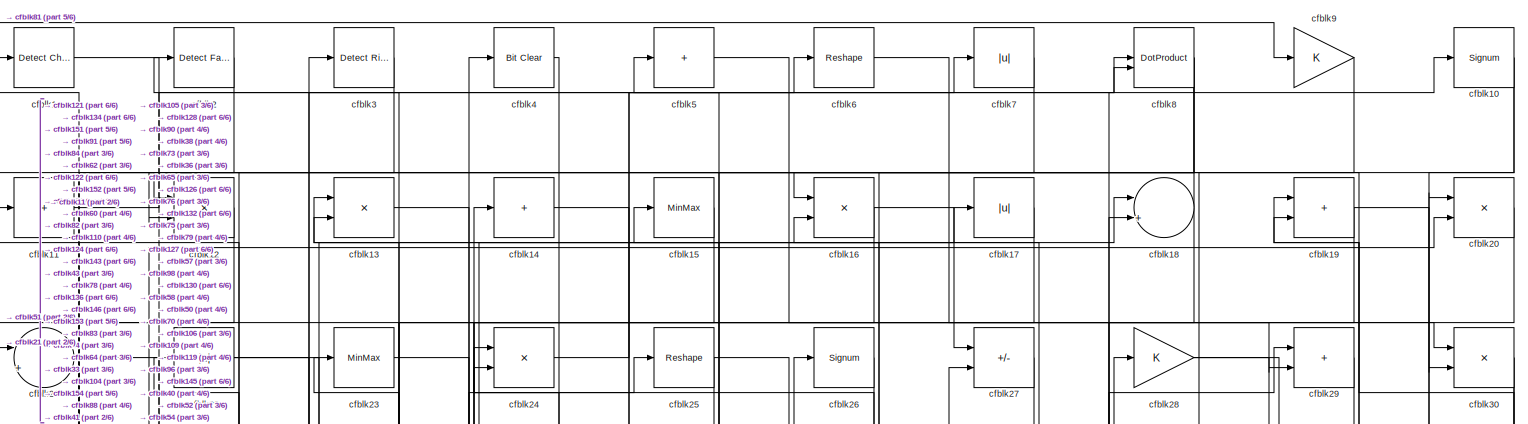
[diagram: root canvas - part 1/6, full width, top band]
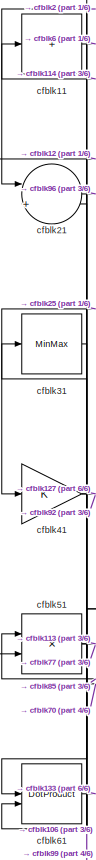
[diagram: root canvas - part 2/6, top left region]
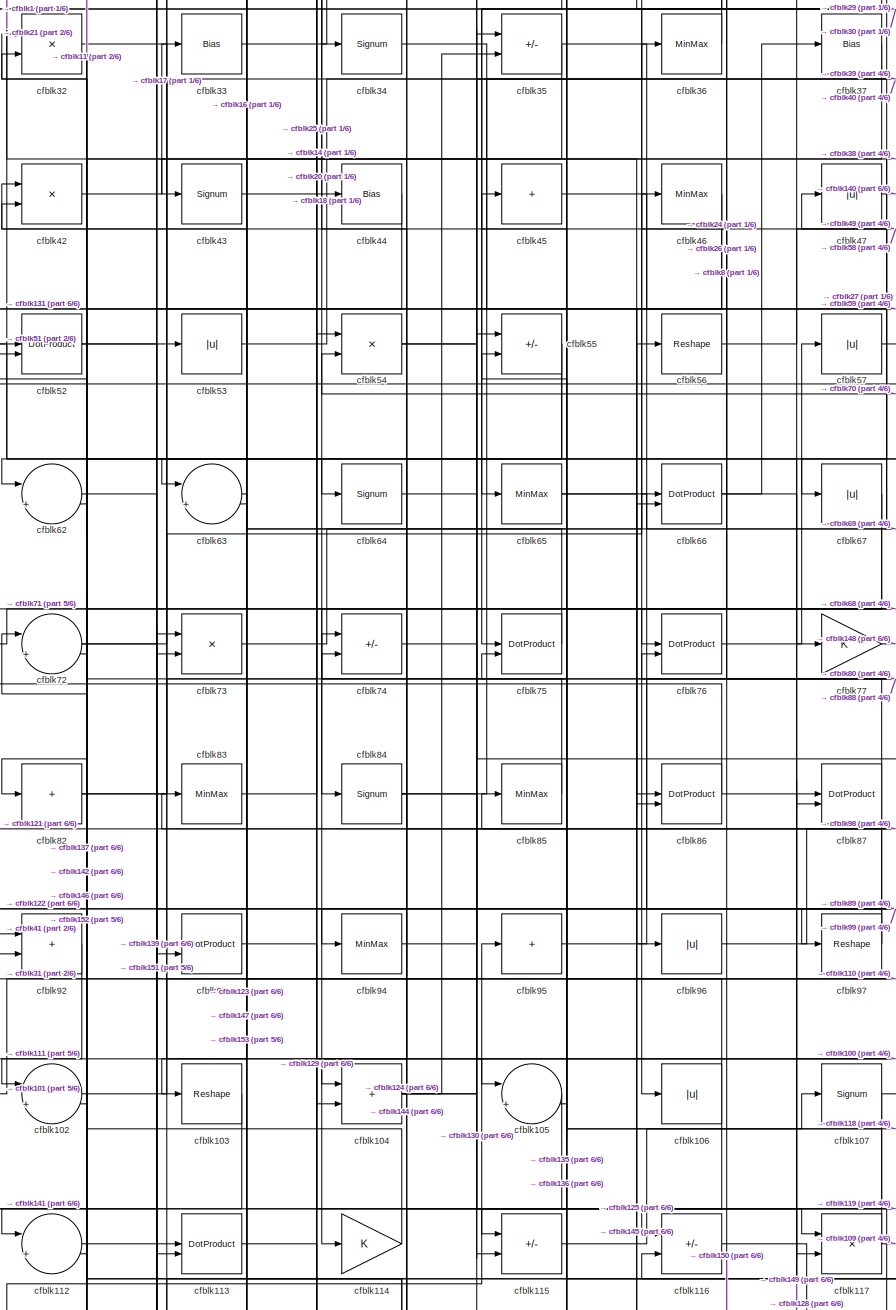
[diagram: root canvas - part 3/6, central region]
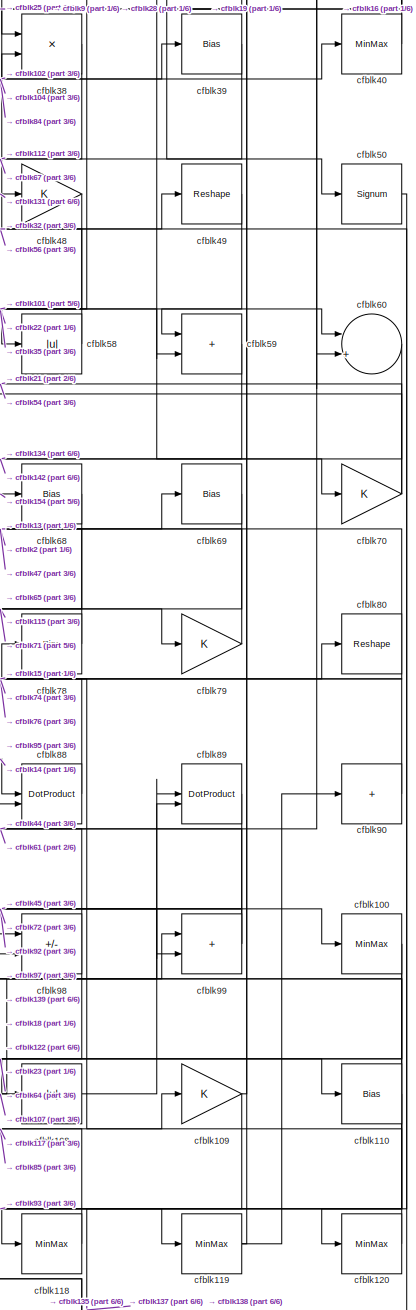
[diagram: root canvas - part 4/6, middle right region]
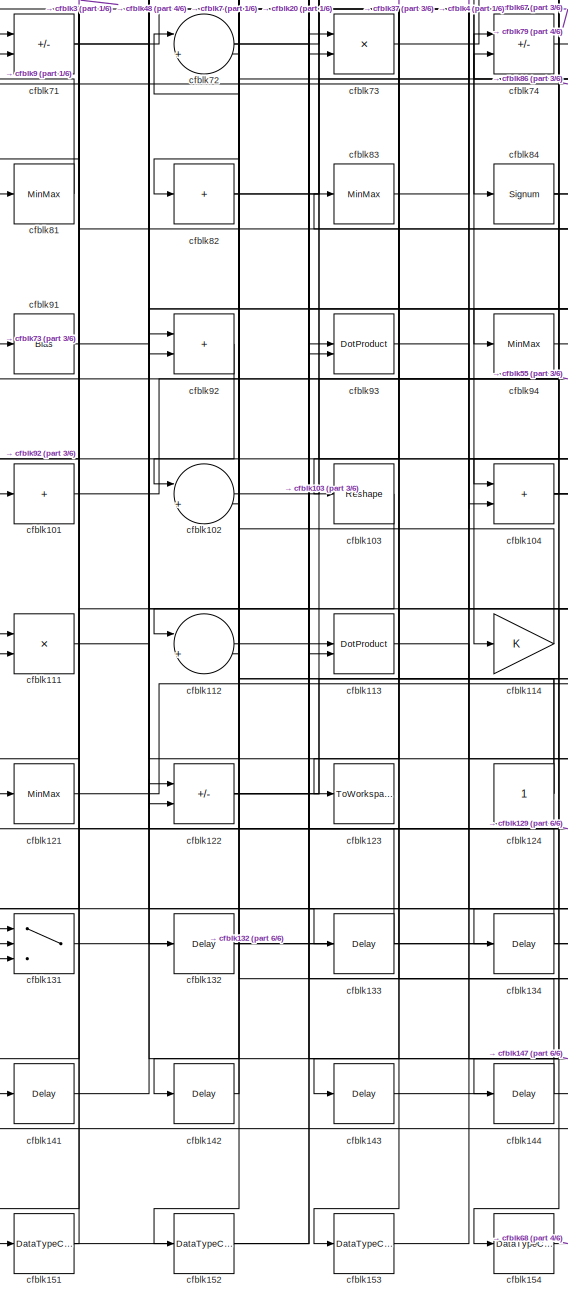
[diagram: root canvas - part 5/6, bottom left region]
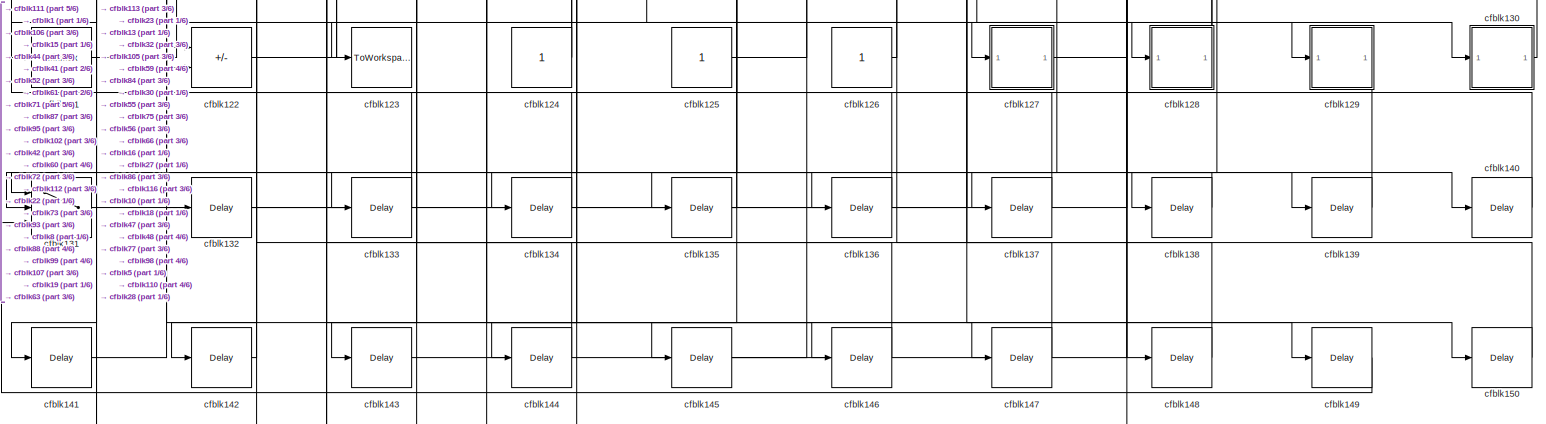
[diagram: root canvas - part 6/6, full width, bottom band]
MODEL slx_20498c852771
KIND model
CONFIG AbsTol = auto
CONFIG EnableMultiTasking = off
CONFIG FixedStep = auto
CONFIG MaxStep = auto
CONFIG MinStep = auto
CONFIG RelTol = 1e-3
CONFIG SampleTimeConstraint = Unconstrained
CONFIG SolverName = VariableStepAuto
CONFIG StartTime = 0.0
CONFIG StopTime = 10.0
BLOCK [Reference] cfblk1  REF=simulink/Logic and Bit
Operations/Detect
Change
  LibrarySourceBlock = hdlsllib/Logic and Bit\nOperations/Detect\nChange
  SourceBlock = simulink/Logic and Bit\nOperations/Detect\nChange
  SourceType = Detect Change
BLOCK [Signum] cfblk10
BLOCK [MinMax] cfblk100
BLOCK [Sum] cfblk101
  IconShape = rectangular
  Inputs = +
BLOCK [Sum] cfblk102
  Inputs = |++
BLOCK [Reshape] cfblk103
BLOCK [Sum] cfblk104
  IconShape = rectangular
BLOCK [Sum] cfblk105
  Inputs = |++
BLOCK [Abs] cfblk106
  SaturateOnIntegerOverflow = off
BLOCK [Signum] cfblk107
BLOCK [Abs] cfblk108
  SaturateOnIntegerOverflow = off
BLOCK [Gain] cfblk109
BLOCK [Sum] cfblk11
  IconShape = rectangular
  Inputs = +
BLOCK [Bias] cfblk110
  Bias = 0.0
  SaturateOnIntegerOverflow = off
BLOCK [Product] cfblk111
  Inputs = */
  RndMeth = Zero
  SaturateOnIntegerOverflow = on
BLOCK [Sum] cfblk112
  Inputs = |++
BLOCK [DotProduct] cfblk113
  OutDataTypeStr = Inherit: Inherit via internal rule
BLOCK [Gain] cfblk114
BLOCK [Sum] cfblk115
  IconShape = rectangular
  Inputs = +-
BLOCK [Sum] cfblk116
  IconShape = rectangular
  Inputs = +-
BLOCK [Product] cfblk117
  Inputs = */
  RndMeth = Zero
  SaturateOnIntegerOverflow = on
BLOCK [MinMax] cfblk118
BLOCK [MinMax] cfblk119
BLOCK [Product] cfblk12
  Inputs = */
  RndMeth = Zero
  SaturateOnIntegerOverflow = on
BLOCK [MinMax] cfblk120
BLOCK [MinMax] cfblk121
BLOCK [Sum] cfblk122
  IconShape = rectangular
  Inputs = +-
BLOCK [ToWorkspace] cfblk123
  MaxDataPoints = inf
  SampleTime = -1
  SaveFormat = Timeseries
  VariableName = simout
BLOCK [Constant] cfblk124
  SampleTime = -1
BLOCK [Constant] cfblk125
  SampleTime = -1
BLOCK [Constant] cfblk126
  SampleTime = -1
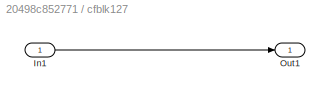
BLOCK [SubSystem] cfblk127
  LibrarySourceBlock = hdlsllib/Ports &\nSubsystems/Subsystem
BLOCK [Inport] cfblk127/In1
BLOCK [Outport] cfblk127/Out1
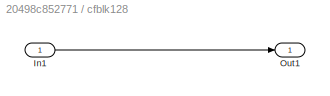
BLOCK [SubSystem] cfblk128
  LibrarySourceBlock = hdlsllib/Ports &\nSubsystems/Subsystem
BLOCK [Inport] cfblk128/In1
BLOCK [Outport] cfblk128/Out1
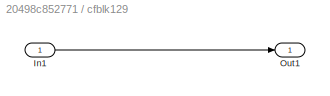
BLOCK [SubSystem] cfblk129
  LibrarySourceBlock = hdlsllib/Ports &\nSubsystems/Subsystem
BLOCK [Inport] cfblk129/In1
BLOCK [Outport] cfblk129/Out1
BLOCK [Product] cfblk13
  Inputs = */
  RndMeth = Zero
  SaturateOnIntegerOverflow = on
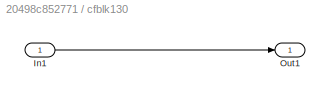
BLOCK [SubSystem] cfblk130
  LibrarySourceBlock = hdlsllib/Ports &\nSubsystems/Subsystem
BLOCK [Inport] cfblk130/In1
BLOCK [Outport] cfblk130/Out1
BLOCK [Switch] cfblk131
  InputSameDT = off
  SaturateOnIntegerOverflow = off
BLOCK [Delay] cfblk132
  InputPortMap = u0
  SampleTime = 1
BLOCK [Delay] cfblk133
  InputPortMap = u0
  SampleTime = 1
BLOCK [Delay] cfblk134
  InputPortMap = u0
  SampleTime = 1
BLOCK [Delay] cfblk135
  InputPortMap = u0
  SampleTime = 1
BLOCK [Delay] cfblk136
  InputPortMap = u0
  SampleTime = 1
BLOCK [Delay] cfblk137
  InputPortMap = u0
  SampleTime = 1
BLOCK [Delay] cfblk138
  InputPortMap = u0
  SampleTime = 1
BLOCK [Delay] cfblk139
  InputPortMap = u0
  SampleTime = 1
BLOCK [Sum] cfblk14
  IconShape = rectangular
  Inputs = +
BLOCK [Delay] cfblk140
  InputPortMap = u0
  SampleTime = 1
BLOCK [Delay] cfblk141
  InputPortMap = u0
  SampleTime = 1
BLOCK [Delay] cfblk142
  InputPortMap = u0
  SampleTime = 1
BLOCK [Delay] cfblk143
  InputPortMap = u0
  SampleTime = 1
BLOCK [Delay] cfblk144
  InputPortMap = u0
  SampleTime = 1
BLOCK [Delay] cfblk145
  InputPortMap = u0
  SampleTime = 1
BLOCK [Delay] cfblk146
  InputPortMap = u0
  SampleTime = 1
BLOCK [Delay] cfblk147
  InputPortMap = u0
  SampleTime = 1
BLOCK [Delay] cfblk148
  InputPortMap = u0
  SampleTime = 1
BLOCK [Delay] cfblk149
  InputPortMap = u0
  SampleTime = 1
BLOCK [MinMax] cfblk15
BLOCK [Delay] cfblk150
  InputPortMap = u0
  SampleTime = 1
BLOCK [DataTypeConversion] cfblk151
  RndMeth = Floor
  SaturateOnIntegerOverflow = off
BLOCK [DataTypeConversion] cfblk152
  OutDataTypeStr = uint8
  RndMeth = Floor
  SaturateOnIntegerOverflow = off
BLOCK [DataTypeConversion] cfblk153
  OutDataTypeStr = boolean
  RndMeth = Floor
  SaturateOnIntegerOverflow = off
BLOCK [DataTypeConversion] cfblk154
  OutDataTypeStr = uint8
  RndMeth = Floor
  SaturateOnIntegerOverflow = off
BLOCK [Product] cfblk16
  Inputs = */
  RndMeth = Zero
  SaturateOnIntegerOverflow = on
BLOCK [Abs] cfblk17
  SaturateOnIntegerOverflow = off
BLOCK [Sum] cfblk18
  Inputs = |++
BLOCK [Sum] cfblk19
  IconShape = rectangular
BLOCK [Reference] cfblk2  REF=hdlsllib/Logic and Bit
Operations/Detect Fall
Nonpositive
  SourceBlock = hdlsllib/Logic and Bit\nOperations/Detect Fall\nNonpositive
  SourceType = Detect Fall Nonpositive
BLOCK [Product] cfblk20
  Inputs = */
  RndMeth = Zero
  SaturateOnIntegerOverflow = on
BLOCK [Sum] cfblk21
  Inputs = |++
BLOCK [Abs] cfblk22
  SaturateOnIntegerOverflow = off
BLOCK [MinMax] cfblk23
BLOCK [Product] cfblk24
  Inputs = */
  RndMeth = Zero
  SaturateOnIntegerOverflow = on
BLOCK [Reshape] cfblk25
BLOCK [Signum] cfblk26
BLOCK [Sum] cfblk27
  IconShape = rectangular
  Inputs = +-
BLOCK [Gain] cfblk28
BLOCK [Sum] cfblk29
  IconShape = rectangular
BLOCK [Reference] cfblk3  REF=hdlsllib/Logic and Bit
Operations/Detect Rise
Positive
  SourceBlock = hdlsllib/Logic and Bit\nOperations/Detect Rise\nPositive
  SourceType = Detect Rise Positive
BLOCK [Product] cfblk30
  Inputs = */
  RndMeth = Zero
  SaturateOnIntegerOverflow = on
BLOCK [MinMax] cfblk31
BLOCK [Product] cfblk32
  Inputs = */
  RndMeth = Zero
  SaturateOnIntegerOverflow = on
BLOCK [Bias] cfblk33
  Bias = 0.0
  SaturateOnIntegerOverflow = off
BLOCK [Signum] cfblk34
BLOCK [Sum] cfblk35
  IconShape = rectangular
  Inputs = +-
BLOCK [MinMax] cfblk36
BLOCK [Bias] cfblk37
  Bias = 0.0
  SaturateOnIntegerOverflow = off
BLOCK [Product] cfblk38
  Inputs = */
  RndMeth = Zero
  SaturateOnIntegerOverflow = on
BLOCK [Bias] cfblk39
  Bias = 0.0
  SaturateOnIntegerOverflow = off
BLOCK [Reference] cfblk4  REF=simulink/Logic and Bit
Operations/Bit Clear
  LibrarySourceBlock = hdlsllib/Logic and Bit\nOperations/Bit Clear
  SourceBlock = simulink/Logic and Bit\nOperations/Bit Clear
  SourceType = Bit Clear
BLOCK [MinMax] cfblk40
BLOCK [Gain] cfblk41
BLOCK [Product] cfblk42
  Inputs = */
  RndMeth = Zero
  SaturateOnIntegerOverflow = on
BLOCK [Signum] cfblk43
BLOCK [Bias] cfblk44
  Bias = 0.0
  SaturateOnIntegerOverflow = off
BLOCK [Sum] cfblk45
  IconShape = rectangular
  Inputs = +
BLOCK [MinMax] cfblk46
BLOCK [Abs] cfblk47
  SaturateOnIntegerOverflow = off
BLOCK [Gain] cfblk48
BLOCK [Reshape] cfblk49
BLOCK [Sum] cfblk5
  IconShape = rectangular
  Inputs = +
BLOCK [Signum] cfblk50
BLOCK [Product] cfblk51
  Inputs = */
  RndMeth = Zero
  SaturateOnIntegerOverflow = on
BLOCK [DotProduct] cfblk52
  OutDataTypeStr = Inherit: Inherit via internal rule
BLOCK [Abs] cfblk53
  SaturateOnIntegerOverflow = off
BLOCK [Product] cfblk54
  Inputs = */
  RndMeth = Zero
  SaturateOnIntegerOverflow = on
BLOCK [Sum] cfblk55
  IconShape = rectangular
  Inputs = +-
BLOCK [Reshape] cfblk56
BLOCK [Abs] cfblk57
  SaturateOnIntegerOverflow = off
BLOCK [Abs] cfblk58
  SaturateOnIntegerOverflow = off
BLOCK [Sum] cfblk59
  IconShape = rectangular
BLOCK [Reshape] cfblk6
BLOCK [Sum] cfblk60
  Inputs = |++
BLOCK [DotProduct] cfblk61
  OutDataTypeStr = Inherit: Inherit via internal rule
BLOCK [Sum] cfblk62
  Inputs = |++
BLOCK [Sum] cfblk63
  Inputs = |++
BLOCK [Signum] cfblk64
BLOCK [MinMax] cfblk65
BLOCK [DotProduct] cfblk66
  OutDataTypeStr = Inherit: Inherit via internal rule
BLOCK [Abs] cfblk67
  SaturateOnIntegerOverflow = off
BLOCK [Bias] cfblk68
  Bias = 0.0
  SaturateOnIntegerOverflow = off
BLOCK [Bias] cfblk69
  Bias = 0.0
  SaturateOnIntegerOverflow = off
BLOCK [Abs] cfblk7
  SaturateOnIntegerOverflow = off
BLOCK [Gain] cfblk70
BLOCK [Sum] cfblk71
  IconShape = rectangular
  Inputs = +-
BLOCK [Sum] cfblk72
  Inputs = |++
BLOCK [Product] cfblk73
  Inputs = */
  RndMeth = Zero
  SaturateOnIntegerOverflow = on
BLOCK [Sum] cfblk74
  IconShape = rectangular
  Inputs = +-
BLOCK [DotProduct] cfblk75
  OutDataTypeStr = Inherit: Inherit via internal rule
BLOCK [DotProduct] cfblk76
  OutDataTypeStr = Inherit: Inherit via internal rule
BLOCK [Gain] cfblk77
BLOCK [Bias] cfblk78
  Bias = 0.0
  SaturateOnIntegerOverflow = off
BLOCK [Gain] cfblk79
BLOCK [DotProduct] cfblk8
  OutDataTypeStr = Inherit: Inherit via internal rule
BLOCK [Reshape] cfblk80
BLOCK [MinMax] cfblk81
BLOCK [Sum] cfblk82
  IconShape = rectangular
  Inputs = +
BLOCK [MinMax] cfblk83
BLOCK [Signum] cfblk84
BLOCK [MinMax] cfblk85
BLOCK [DotProduct] cfblk86
  OutDataTypeStr = Inherit: Inherit via internal rule
BLOCK [DotProduct] cfblk87
  OutDataTypeStr = Inherit: Inherit via internal rule
BLOCK [DotProduct] cfblk88
  OutDataTypeStr = Inherit: Inherit via internal rule
BLOCK [DotProduct] cfblk89
  OutDataTypeStr = Inherit: Inherit via internal rule
BLOCK [Gain] cfblk9
BLOCK [Sum] cfblk90
  IconShape = rectangular
  Inputs = +
BLOCK [Bias] cfblk91
  Bias = 0.0
  SaturateOnIntegerOverflow = off
BLOCK [Sum] cfblk92
  IconShape = rectangular
BLOCK [DotProduct] cfblk93
  OutDataTypeStr = Inherit: Inherit via internal rule
BLOCK [MinMax] cfblk94
BLOCK [Sum] cfblk95
  IconShape = rectangular
  Inputs = +
BLOCK [Abs] cfblk96
  SaturateOnIntegerOverflow = off
BLOCK [Reshape] cfblk97
BLOCK [Sum] cfblk98
  IconShape = rectangular
  Inputs = +-
BLOCK [Sum] cfblk99
  IconShape = rectangular
NET cfblk100:1 -> cfblk108:1, cfblk112:2
LINE cfblk101:1 -> cfblk55:1
LINE cfblk102:1 -> cfblk39:1
LINE cfblk103:1 -> cfblk152:1
NET cfblk104:1 -> cfblk117:1, cfblk24:2, cfblk35:2, cfblk38:2
LINE cfblk105:1 -> cfblk144:1
NET cfblk106:1 -> cfblk141:1, cfblk31:1
NET cfblk107:1 -> cfblk123:1, cfblk89:2
LINE cfblk108:1 -> cfblk89:1
NET cfblk109:1 -> cfblk118:1, cfblk19:1
NET cfblk10:1 -> cfblk12:2, cfblk30:2
NET cfblk110:1 -> cfblk135:1, cfblk137:1, cfblk138:1, cfblk23:1, cfblk45:1
LINE cfblk111:1 -> cfblk132:1
LINE cfblk112:1 -> cfblk139:1
LINE cfblk113:1 -> cfblk129:1
LINE cfblk114:1 -> cfblk11:1
LINE cfblk115:1 -> cfblk107:1
LINE cfblk116:1 -> cfblk128:1
NET cfblk117:1 -> cfblk109:1, cfblk74:2
LINE cfblk118:1 -> cfblk85:1
NET cfblk119:1 -> cfblk19:2, cfblk90:1
LINE cfblk11:1 -> cfblk6:1
LINE cfblk120:1 -> cfblk78:1
LINE cfblk121:1 -> cfblk95:1
NET cfblk122:1 -> cfblk88:2, cfblk8:1, cfblk99:1
NET cfblk124:1 -> cfblk13:2, cfblk32:2
LINE cfblk125:1 -> cfblk56:1
LINE cfblk126:1 -> cfblk16:2
LINE cfblk127/In1:1 -> cfblk127/Out1:1
LINE cfblk127:1 -> cfblk10:1
LINE cfblk128/In1:1 -> cfblk128/Out1:1
NET cfblk128:1 -> cfblk22:1, cfblk5:1
LINE cfblk129/In1:1 -> cfblk129/Out1:1
LINE cfblk129:1 -> cfblk111:1
LINE cfblk12:1 -> cfblk51:2
LINE cfblk130/In1:1 -> cfblk130/Out1:1
LINE cfblk130:1 -> cfblk28:1
LINE cfblk131:1 -> cfblk48:1
LINE cfblk132:1 -> cfblk27:2
LINE cfblk133:1 -> cfblk122:1
LINE cfblk134:1 -> cfblk1:1
LINE cfblk135:1 -> cfblk55:2
LINE cfblk136:1 -> cfblk75:2
LINE cfblk137:1 -> cfblk72:1
LINE cfblk138:1 -> cfblk131:2
LINE cfblk139:1 -> cfblk98:1
LINE cfblk13:1 -> cfblk146:1
LINE cfblk140:1 -> cfblk93:1
LINE cfblk141:1 -> cfblk52:1
LINE cfblk142:1 -> cfblk102:2
LINE cfblk143:1 -> cfblk18:2
LINE cfblk144:1 -> cfblk73:1
LINE cfblk145:1 -> cfblk66:2
LINE cfblk146:1 -> cfblk42:2
LINE cfblk147:1 -> cfblk63:2
LINE cfblk148:1 -> cfblk87:1
LINE cfblk149:1 -> cfblk131:3
LINE cfblk14:1 -> cfblk88:1
LINE cfblk150:1 -> cfblk116:2
NET cfblk151:1 -> cfblk73:2, cfblk91:1
LINE cfblk152:1 -> cfblk3:1
LINE cfblk153:1 -> cfblk4:1
LINE cfblk154:1 -> cfblk68:1
LINE cfblk15:1 -> cfblk121:1
NET cfblk16:1 -> cfblk27:1, cfblk43:1
LINE cfblk17:1 -> cfblk34:1
NET cfblk18:1 -> cfblk12:1, cfblk98:2
NET cfblk19:1 -> cfblk143:1, cfblk60:2
LINE cfblk1:1 -> cfblk84:1
LINE cfblk20:1 -> cfblk64:1
LINE cfblk21:1 -> cfblk96:1
NET cfblk22:1 -> cfblk150:1, cfblk60:1
LINE cfblk23:1 -> cfblk136:1
LINE cfblk24:1 -> cfblk7:1
NET cfblk25:1 -> cfblk38:1, cfblk41:1
LINE cfblk26:1 -> cfblk65:1
LINE cfblk27:1 -> cfblk75:1
NET cfblk28:1 -> cfblk50:1, cfblk70:1
LINE cfblk29:1 -> cfblk106:1
LINE cfblk2:1 -> cfblk21:1
NET cfblk30:1 -> cfblk145:1, cfblk52:2
LINE cfblk31:1 -> cfblk61:1
LINE cfblk32:1 -> cfblk105:1
LINE cfblk33:1 -> cfblk18:1
LINE cfblk34:1 -> cfblk86:1
NET cfblk35:1 -> cfblk59:2, cfblk63:1
LINE cfblk36:1 -> cfblk24:1
LINE cfblk37:1 -> cfblk153:1
LINE cfblk38:1 -> cfblk112:1
LINE cfblk39:1 -> cfblk67:1
LINE cfblk3:1 -> cfblk151:1
LINE cfblk40:1 -> cfblk16:1
NET cfblk41:1 -> cfblk127:1, cfblk92:1
LINE cfblk42:1 -> cfblk33:1
LINE cfblk43:1 -> cfblk14:1
LINE cfblk44:1 -> cfblk131:1
LINE cfblk45:1 -> cfblk100:1
NET cfblk46:1 -> cfblk82:1, cfblk86:2
LINE cfblk47:1 -> cfblk140:1
LINE cfblk48:1 -> cfblk101:1
LINE cfblk49:1 -> cfblk59:1
LINE cfblk4:1 -> cfblk154:1
LINE cfblk50:1 -> cfblk120:1
NET cfblk51:1 -> cfblk113:2, cfblk77:1
NET cfblk52:1 -> cfblk53:1, cfblk93:2
LINE cfblk53:1 -> cfblk36:1
NET cfblk54:1 -> cfblk116:1, cfblk8:2
NET cfblk55:1 -> cfblk62:1, cfblk72:2
LINE cfblk56:1 -> cfblk49:1
LINE cfblk57:1 -> cfblk29:1
LINE cfblk58:1 -> cfblk32:1
LINE cfblk59:1 -> cfblk134:1
LINE cfblk5:1 -> cfblk29:2
LINE cfblk60:1 -> cfblk142:1
LINE cfblk61:1 -> cfblk133:1
LINE cfblk62:1 -> cfblk113:1
LINE cfblk63:1 -> cfblk103:1
LINE cfblk64:1 -> cfblk110:1
NET cfblk65:1 -> cfblk117:2, cfblk69:1
NET cfblk66:1 -> cfblk37:1, cfblk87:2
NET cfblk67:1 -> cfblk114:1, cfblk71:2
LINE cfblk68:1 -> cfblk115:1
LINE cfblk69:1 -> cfblk102:1
LINE cfblk6:1 -> cfblk30:1
NET cfblk70:1 -> cfblk21:2, cfblk54:2
NET cfblk71:1 -> cfblk147:1, cfblk79:1
NET cfblk72:1 -> cfblk66:1, cfblk99:2
LINE cfblk73:1 -> cfblk26:1
LINE cfblk74:1 -> cfblk115:2
LINE cfblk75:1 -> cfblk42:1
LINE cfblk76:1 -> cfblk57:1
LINE cfblk77:1 -> cfblk148:1
LINE cfblk78:1 -> cfblk2:1
LINE cfblk79:1 -> cfblk13:1
LINE cfblk7:1 -> cfblk81:1
NET cfblk80:1 -> cfblk47:1, cfblk76:2
LINE cfblk81:1 -> cfblk9:1
NET cfblk82:1 -> cfblk17:1, cfblk54:1
LINE cfblk83:1 -> cfblk25:1
NET cfblk84:1 -> cfblk104:1, cfblk130:1, cfblk40:1
LINE cfblk85:1 -> cfblk51:1
NET cfblk86:1 -> cfblk149:1, cfblk71:1
NET cfblk87:1 -> cfblk122:2, cfblk46:1
LINE cfblk88:1 -> cfblk74:1
LINE cfblk89:1 -> cfblk92:2
NET cfblk8:1 -> cfblk105:2, cfblk62:2, cfblk76:1
LINE cfblk90:1 -> cfblk15:1
LINE cfblk91:1 -> cfblk20:2
LINE cfblk92:1 -> cfblk111:2
LINE cfblk93:1 -> cfblk119:1
LINE cfblk94:1 -> cfblk35:1
LINE cfblk95:1 -> cfblk80:1
LINE cfblk96:1 -> cfblk20:1
NET cfblk97:1 -> cfblk83:1, cfblk94:1
NET cfblk98:1 -> cfblk104:2, cfblk44:1
NET cfblk99:1 -> cfblk61:2, cfblk97:1
LINE cfblk9:1 -> cfblk58:1
note: NET lines group one-source signal fan-out (src -> all destinations, sorted); 1:1 wires keep LINE
